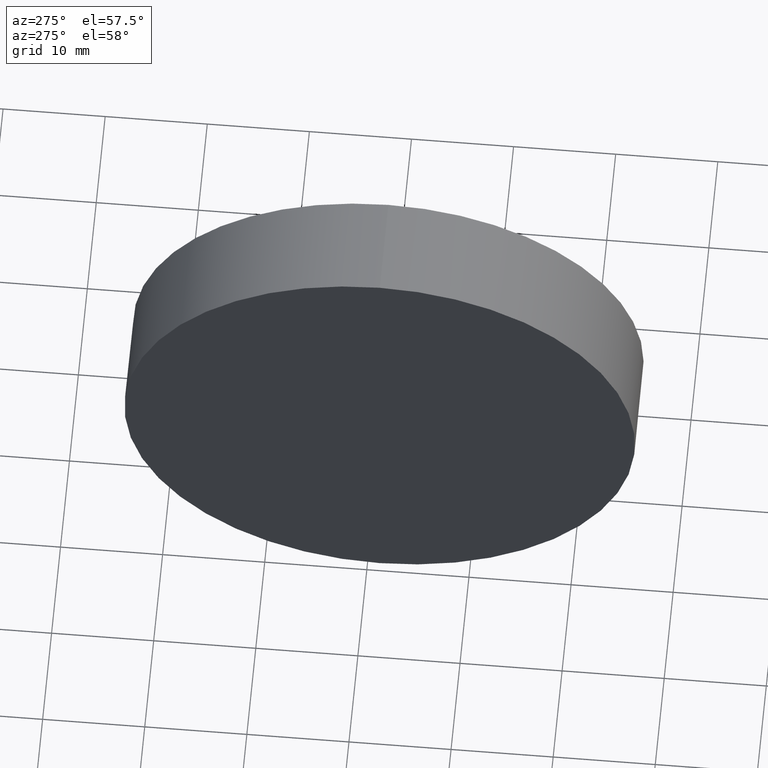
[diagram: clean part render]
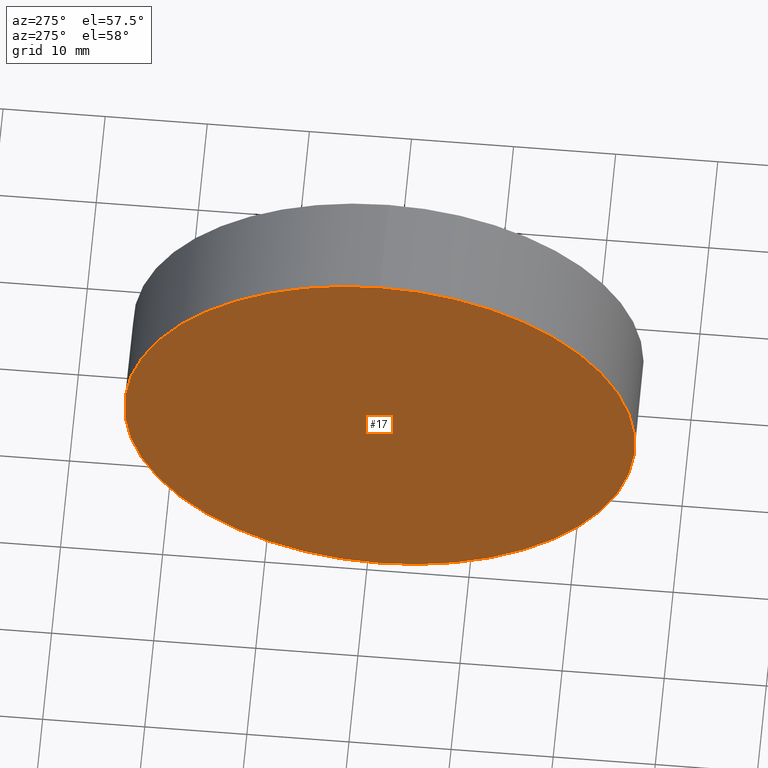
[diagram: same view with one face highlighted and labeled with its STEP entity id]
A machine part, auxiliary view. The second image highlights one B-rep face of the part: STEP entity #17.
In plain terms, the highlighted planar face has unit normal (1, 0, 0).
Its self-contained STEP definition (entity closure, byte-faithful):
#5 = EDGE_CURVE ( 'NONE', #164, #23, #97, .T. ) ;
#16 = FACE_OUTER_BOUND ( 'NONE', #87, .T. ) ;
#17 = ADVANCED_FACE ( 'NONE', ( #16 ), #38, .F. ) ;
#23 = VERTEX_POINT ( 'NONE', #147 ) ;
#28 = AXIS2_PLACEMENT_3D ( 'NONE', #151, #135, #50 ) ;
#38 = PLANE ( 'NONE',  #166 ) ;
#50 = DIRECTION ( 'NONE',  ( 0.0000000000000000000, 0.0000000000000000000, 1.000000000000000000 ) ) ;
#58 = DIRECTION ( 'NONE',  ( -1.000000000000000000, -0.0000000000000000000, -0.0000000000000000000 ) ) ;
#72 = EDGE_CURVE ( 'NONE', #23, #164, #153, .T. ) ;
#87 = EDGE_LOOP ( 'NONE', ( #116, #169 ) ) ;
#93 = DIRECTION ( 'NONE',  ( 1.000000000000000000, 0.0000000000000000000, 0.0000000000000000000 ) ) ;
#97 = CIRCLE ( 'NONE', #28, 24.99999999999999300 ) ;
#98 = CARTESIAN_POINT ( 'NONE',  ( 230.1853110698390300, 138.7560422467448700, 0.0000000000000000000 ) ) ;
#110 = CARTESIAN_POINT ( 'NONE',  ( 230.1853110698390300, 138.7560422467448700, 0.0000000000000000000 ) ) ;
#114 = DIRECTION ( 'NONE',  ( 0.0000000000000000000, 0.0000000000000000000, 1.000000000000000000 ) ) ;
#116 = ORIENTED_EDGE ( 'NONE', *, *, #5, .T. ) ;
#123 = DIRECTION ( 'NONE',  ( 0.0000000000000000000, 0.0000000000000000000, -1.000000000000000000 ) ) ;
#135 = DIRECTION ( 'NONE',  ( -1.000000000000000000, -0.0000000000000000000, -0.0000000000000000000 ) ) ;
#144 = AXIS2_PLACEMENT_3D ( 'NONE', #98, #58, #114 ) ;
#147 = CARTESIAN_POINT ( 'NONE',  ( 230.1853110698390300, 138.7560422467448700, -24.99999999999999300 ) ) ;
#151 = CARTESIAN_POINT ( 'NONE',  ( 230.1853110698390300, 138.7560422467448700, 0.0000000000000000000 ) ) ;
#153 = CIRCLE ( 'NONE', #144, 24.99999999999999300 ) ;
#164 = VERTEX_POINT ( 'NONE', #184 ) ;
#166 = AXIS2_PLACEMENT_3D ( 'NONE', #110, #93, #123 ) ;
#169 = ORIENTED_EDGE ( 'NONE', *, *, #72, .T. ) ;
#184 = CARTESIAN_POINT ( 'NONE',  ( 230.1853110698390300, 138.7560422467448700, 24.99999999999999300 ) ) ;